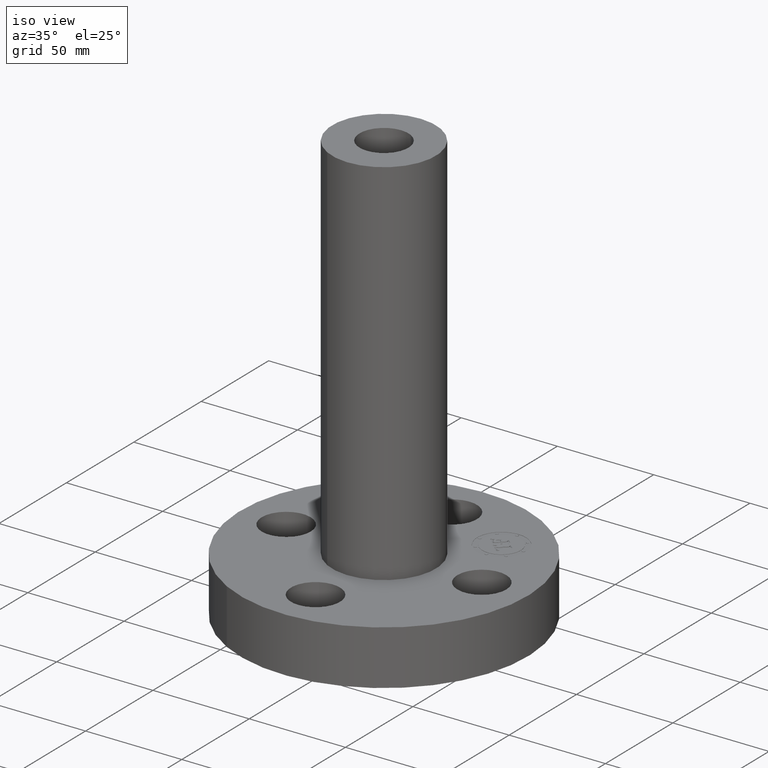
[diagram: clean part render]
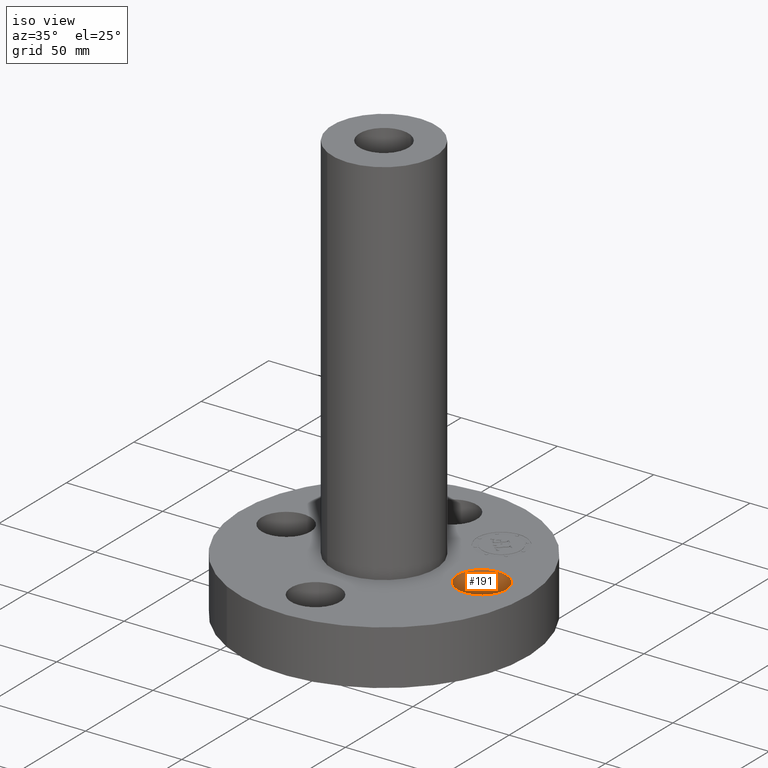
[diagram: same view with one face highlighted and labeled with its STEP entity id]
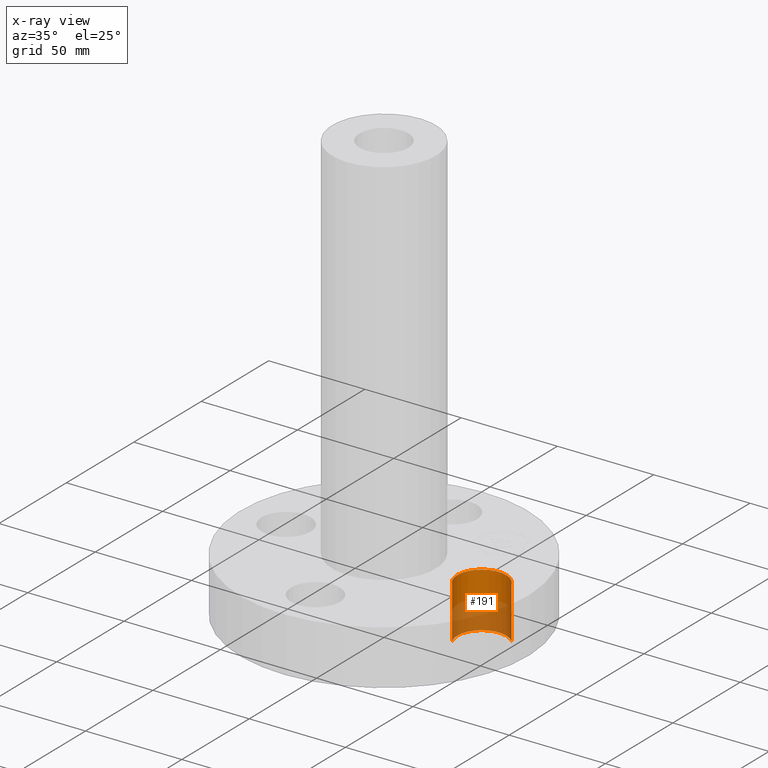
[diagram: x-ray of the same camera — body ghosted, the highlighted face saturated]
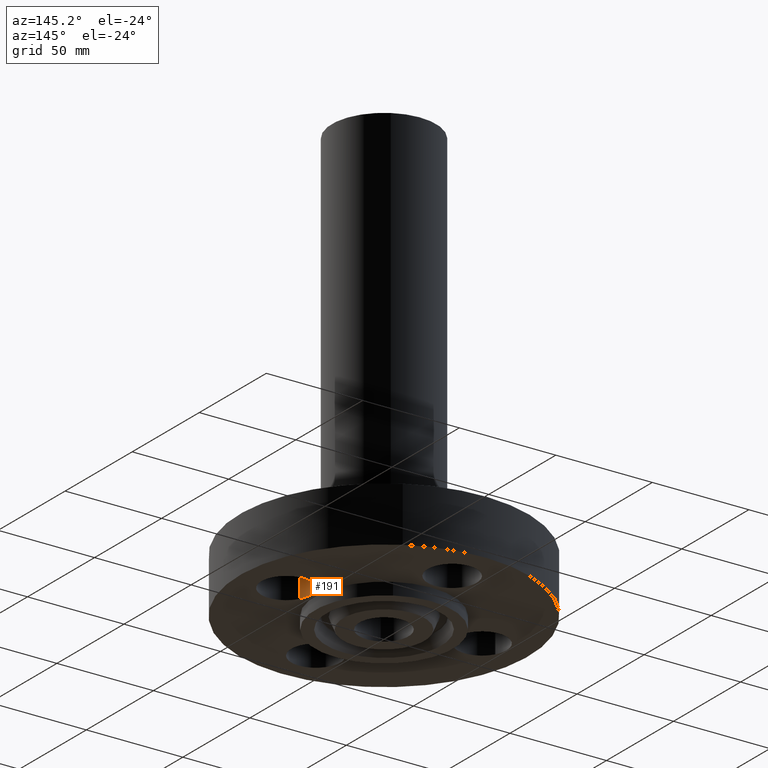
[diagram: same view with one face highlighted and labeled with its STEP entity id]
A machine part, iso view. The second image highlights one B-rep face of the part: STEP entity #191.
The next image is the same camera in x-ray: the body ghosted, the highlighted face saturated — about 49% of this face is hidden behind the body in this view.
A second angle (auxiliary view) of the same face is appended — the face is thin or edge-on in the first view.
In plain terms, the highlighted cylindrical surface (edge-blend (fillet) strip) has radius 12.7 mm, axis along (0, -0, 1).
Its self-contained STEP definition (entity closure, byte-faithful):
#38=AXIS2_PLACEMENT_3D('Cylinder Axis2P3D',#35,#36,#37) ;
#100=AXIS2_PLACEMENT_3D('Circle Axis2P3D',#98,#99,$) ;
#182=AXIS2_PLACEMENT_3D('Circle Axis2P3D',#180,#181,$) ;
#35=CARTESIAN_POINT('Axis2P3D Location',(2.00000000001,0.,0.00393700787402)) ;
#40=CARTESIAN_POINT('Line Origine',(1.56120871906,-0.239712769303,0.560000000002)) ;
#44=CARTESIAN_POINT('Vertex',(1.56120871906,-0.239712769303,1.12)) ;
#46=CARTESIAN_POINT('Vertex',(1.56120871906,-0.239712769303,2.2401153548E-016)) ;
#53=CARTESIAN_POINT('Vertex',(2.43879128095,0.239712769303,1.12)) ;
#56=CARTESIAN_POINT('Line Origine',(2.43879128095,0.239712769303,0.560000000002)) ;
#60=CARTESIAN_POINT('Vertex',(2.43879128095,0.239712769303,2.2401153548E-016)) ;
#98=CARTESIAN_POINT('Axis2P3D Location',(2.00000000001,-1.39870617276E-016,0.)) ;
#180=CARTESIAN_POINT('Axis2P3D Location',(2.00000000001,0.,1.12)) ;
#36=DIRECTION('Axis2P3D Direction',(0.,-0.,0.0393700787402)) ;
#37=DIRECTION('Axis2P3D XDirection',(0.0345504945626,0.0188750212049,0.)) ;
#41=DIRECTION('Vector Direction',(0.,0.,0.0393700787402)) ;
#57=DIRECTION('Vector Direction',(0.,0.,0.0393700787402)) ;
#99=DIRECTION('Axis2P3D Direction',(0.,0.,-0.0393700787402)) ;
#181=DIRECTION('Axis2P3D Direction',(0.,-0.,0.0393700787402)) ;
#42=VECTOR('Line Direction',#41,0.0393700787402) ;
#58=VECTOR('Line Direction',#57,0.0393700787402) ;
#186=ORIENTED_EDGE('',*,*,#62,.F.) ;
#187=ORIENTED_EDGE('',*,*,#184,.F.) ;
#188=ORIENTED_EDGE('',*,*,#48,.T.) ;
#189=ORIENTED_EDGE('',*,*,#102,.T.) ;
#191=ADVANCED_FACE('PartBody',(#190),#39,.F.) ;
#101=CIRCLE('generated circle',#100,0.500000000002) ;
#183=CIRCLE('generated circle',#182,0.500000000002) ;
#39=CYLINDRICAL_SURFACE('generated cylinder',#38,0.500000000002) ;
#48=EDGE_CURVE('',#45,#47,#43,.F.) ;
#62=EDGE_CURVE('',#54,#61,#59,.F.) ;
#102=EDGE_CURVE('',#47,#61,#101,.T.) ;
#184=EDGE_CURVE('',#45,#54,#183,.F.) ;
#185=EDGE_LOOP('',(#186,#187,#188,#189)) ;
#190=FACE_OUTER_BOUND('',#185,.T.) ;
#43=LINE('Line',#40,#42) ;
#59=LINE('Line',#56,#58) ;
#45=VERTEX_POINT('',#44) ;
#47=VERTEX_POINT('',#46) ;
#54=VERTEX_POINT('',#53) ;
#61=VERTEX_POINT('',#60) ;